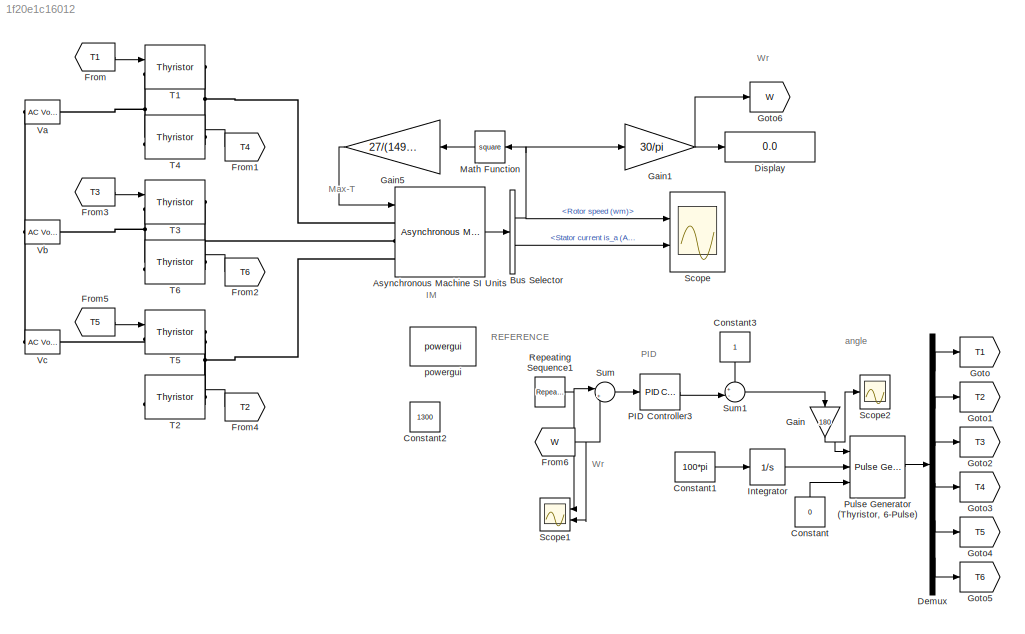
MODEL slx_1f20e1c16012
KIND model
CONFIG AbsTol = auto
CONFIG EnableMultiTasking = on
CONFIG FixedStep = auto
CONFIG MaxStep = 1e-4
CONFIG MinStep = auto
CONFIG RelTol = 1e-3
CONFIG SampleTimeConstraint = Unconstrained
CONFIG SolverName = ode23s
CONFIG StartTime = 0.0
CONFIG StopTime = 10
BLOCK [Reference]  Va  REF=spsACVoltageSourceLib/AC Voltage Source
  Ports = [0, 0, 0, 0, 0, 1, 1]
  SourceBlock = spsACVoltageSourceLib/AC Voltage Source
  SourceProductBaseCode = PS
  SourceType = AC Voltage Source
BLOCK [Reference] Asynchronous Machine SI Units  REF=spsAsynchronousMachineSIUnitsLib/Asynchronous Machine
SI Units
  Ports = [1, 1, 0, 0, 0, 3]
  SourceBlock = spsAsynchronousMachineSIUnitsLib/Asynchronous Machine\nSI Units
  SourceProductBaseCode = PS
  SourceType = Asynchronous Machine
BLOCK [BusSelector] Bus Selector
  OutputSignals = Mechanical.Rotor speed (wm),Stator measurements.Stator current is_a (A)
  Ports = [1, 2]
BLOCK [Constant] Constant
  NameLocation = right
  Value = 0
BLOCK [Constant] Constant1
  Value = 100*pi
BLOCK [Constant] Constant2
  Value = 1300
BLOCK [Constant] Constant3
  NameLocation = left
BLOCK [Demux] Demux
  Outputs = 6
  Ports = [1, 6]
BLOCK [Display] Display
  Decimation = 1
  Ports = [1]
BLOCK [From] From
  GotoTag = T1
BLOCK [From] From1
  GotoTag = T4
  NameLocation = top
BLOCK [From] From2
  GotoTag = T6
  NameLocation = top
BLOCK [From] From3
  GotoTag = T3
BLOCK [From] From4
  GotoTag = T2
  NameLocation = top
BLOCK [From] From5
  GotoTag = T5
BLOCK [From] From6
  GotoTag = W
  NameLocation = top
BLOCK [Gain] Gain
  Gain = 180
  NameLocation = left
BLOCK [Gain] Gain1
  Gain = 30/pi
BLOCK [Gain] Gain5
  Gain = 27/(149)^2
  NameLocation = top
BLOCK [Goto] Goto
  GotoTag = T1
BLOCK [Goto] Goto1
  GotoTag = T2
BLOCK [Goto] Goto2
  GotoTag = T3
BLOCK [Goto] Goto3
  GotoTag = T4
BLOCK [Goto] Goto4
  GotoTag = T5
BLOCK [Goto] Goto5
  GotoTag = T6
BLOCK [Goto] Goto6
  GotoTag = W
BLOCK [Integrator] Integrator
  Ports = [1, 1]
BLOCK [Math] Math Function
  NameLocation = top
  Operator = square
  Ports = [1, 1]
  SignedPower = on
BLOCK [Reference] PID Controller3  REF=slpidlib/PID Controller
  Ports = [1, 1]
  SourceBlock = slpidlib/PID Controller
  SourceProductBaseCode = SL
  SourceType = PID 1dof
BLOCK [Reference] Pulse Generator (Thyristor, 6-Pulse)  REF=spsPulseGeneratorThyristor12PulseLib/Pulse Generator
(Thyristor, 12-Pulse)
  Ports = [3, 1]
  SourceBlock = spsPulseGeneratorThyristor12PulseLib/Pulse Generator\n(Thyristor, 12-Pulse)
  SourceProductBaseCode = PS
  SourceType = Pulse Generator (Thyristor)
BLOCK [Reference] Repeating Sequence1  REF=simulink/Sources/Repeating
Sequence
  Ports = [0, 1]
  SourceBlock = simulink/Sources/Repeating\nSequence
  SourceProductBaseCode = SL
  SourceType = Repeating table
BLOCK [Scope] Scope
  Floating = off
  NumInputPorts = 2
  Ports = [2]
  ScopeSpecificationString = Simulink.scopes.TimeScopeBlockCfg('CurrentConfiguration', extmgr.ConfigurationSet(extmgr.Configuration('Core','General UI',true,'FigureColor',[1 1 1]),extmgr.Configuration('Core','Source UI',true),extmgr.Configuration('Sources','WiredSimulink',true),extmgr.Configuration('Visuals','Time Domain',true,'SerializedDisplays',{struct('MinYLimReal','-19.09785','MaxYLimReal','171.88062','YLabelReal','','Mi...<+2518ch>
BLOCK [Scope] Scope1
  Floating = off
  NameLocation = top
  NumInputPorts = 2
  Ports = [2]
  ScopeSpecificationString = Simulink.scopes.TimeScopeBlockCfg('CurrentConfiguration', extmgr.ConfigurationSet(extmgr.Configuration('Core','General UI',true,'FigureColor',[1 1 1]),extmgr.Configuration('Core','Source UI',true),extmgr.Configuration('Sources','WiredSimulink',true,'DataLoggingVariableName','ScopeData1'),extmgr.Configuration('Visuals','Time Domain',true,'SerializedDisplays',{struct('MinYLimReal','-182.37101','MaxY...<+2146ch>
BLOCK [Scope] Scope2
  Floating = off
  NumInputPorts = 1
  Ports = [1]
  ScopeSpecificationString = Simulink.scopes.TimeScopeBlockCfg('CurrentConfiguration', extmgr.ConfigurationSet(extmgr.Configuration('Core','General UI',true,'FigureColor',[1 1 1]),extmgr.Configuration('Core','Source UI',true),extmgr.Configuration('Sources','WiredSimulink',true,'DataLoggingVariableName','ScopeData2'),extmgr.Configuration('Visuals','Time Domain',true,'SerializedDisplays',{struct('MinYLimReal','-13.39697','MaxYL...<+2248ch>
BLOCK [Sum] Sum
  Inputs = |+-
  Ports = [2, 1]
BLOCK [Sum] Sum1
  Inputs = +-|
  Ports = [2, 1]
BLOCK [Reference] T1  REF=spsThyristorLib/Thyristor
  Ports = [1, 0, 0, 0, 0, 1, 1]
  SourceBlock = spsThyristorLib/Thyristor
  SourceProductBaseCode = PS
  SourceType = Thyristor
BLOCK [Reference] T2  REF=spsThyristorLib/Thyristor
  Ports = [1, 0, 0, 0, 0, 1, 1]
  SourceBlock = spsThyristorLib/Thyristor
  SourceProductBaseCode = PS
  SourceType = Thyristor
BLOCK [Reference] T3  REF=spsThyristorLib/Thyristor
  Ports = [1, 0, 0, 0, 0, 1, 1]
  SourceBlock = spsThyristorLib/Thyristor
  SourceProductBaseCode = PS
  SourceType = Thyristor
BLOCK [Reference] T4  REF=spsThyristorLib/Thyristor
  Ports = [1, 0, 0, 0, 0, 1, 1]
  SourceBlock = spsThyristorLib/Thyristor
  SourceProductBaseCode = PS
  SourceType = Thyristor
BLOCK [Reference] T5  REF=spsThyristorLib/Thyristor
  Ports = [1, 0, 0, 0, 0, 1, 1]
  SourceBlock = spsThyristorLib/Thyristor
  SourceProductBaseCode = PS
  SourceType = Thyristor
BLOCK [Reference] T6  REF=spsThyristorLib/Thyristor
  Ports = [1, 0, 0, 0, 0, 1, 1]
  SourceBlock = spsThyristorLib/Thyristor
  SourceProductBaseCode = PS
  SourceType = Thyristor
BLOCK [Reference] Vb  REF=spsACVoltageSourceLib/AC Voltage Source
  Ports = [0, 0, 0, 0, 0, 1, 1]
  SourceBlock = spsACVoltageSourceLib/AC Voltage Source
  SourceProductBaseCode = PS
  SourceType = AC Voltage Source
BLOCK [Reference] Vc  REF=spsACVoltageSourceLib/AC Voltage Source
  Ports = [0, 0, 0, 0, 0, 1, 1]
  SourceBlock = spsACVoltageSourceLib/AC Voltage Source
  SourceProductBaseCode = PS
  SourceType = AC Voltage Source
BLOCK [Reference] powergui  REF=spspowerguiLib/powergui
  Ports = []
  Priority = 1
  SourceBlock = spspowerguiLib/powergui
  SourceProductBaseCode = PS
  SourceType = PSB option menu block
ANNOTATION (root): PID
ANNOTATION (root): REFERENCE
ANNOTATION (root): Wr
ANNOTATION (root): Max-T
ANNOTATION (root): IM
ANNOTATION (root): angle
LINE Asynchronous Machine SI Units:1 -> Bus Selector:1
NET Bus Selector:1 -> Gain1:1, Math Function:1, Scope:1
LINE Bus Selector:2 -> Scope:2
LINE Constant1:1 -> Integrator:1
LINE Constant3:1 -> Sum1:1
LINE Constant:1 -> Pulse Generator (Thyristor, 6-Pulse):3
LINE Demux:1 -> Goto:1
LINE Demux:2 -> Goto1:1
LINE Demux:3 -> Goto2:1
LINE Demux:4 -> Goto3:1
LINE Demux:5 -> Goto4:1
LINE Demux:6 -> Goto5:1
LINE From1:1 -> T4:1
LINE From2:1 -> T6:1
LINE From3:1 -> T3:1
LINE From4:1 -> T2:1
LINE From5:1 -> T5:1
NET From6:1 -> Scope1:2, Sum:2
LINE From:1 -> T1:1
NET Gain1:1 -> Display:1, Goto6:1
LINE Gain5:1 -> Asynchronous Machine SI Units:1
NET Gain:1 -> Pulse Generator (Thyristor, 6-Pulse):1, Scope2:1
LINE Integrator:1 -> Pulse Generator (Thyristor, 6-Pulse):2
LINE Math Function:1 -> Gain5:1
LINE PID Controller3:1 -> Sum1:2
LINE Pulse Generator (Thyristor, 6-Pulse):1 -> Demux:1
NET Repeating Sequence1:1 -> Scope1:1, Sum:1
LINE Sum1:1 -> Gain:1
LINE Sum:1 -> PID Controller3:1
PNET net1:  Va:LConn1 -- Vb:LConn1 -- Vc:LConn1
PNET net2:  Va:RConn1 -- T1:LConn1 -- T4:RConn1
PNET net3: Asynchronous Machine SI Units:LConn1 -- T1:RConn1 -- T4:LConn1
PNET net4: Asynchronous Machine SI Units:LConn2 -- T3:RConn1 -- T6:LConn1
PNET net5: Asynchronous Machine SI Units:LConn3 -- T2:LConn1 -- T5:RConn1
PNET net6: T2:RConn1 -- T5:LConn1 -- Vc:RConn1
PNET net7: T3:LConn1 -- T6:RConn1 -- Vb:RConn1
note: NET lines group one-source signal fan-out (src -> all destinations, sorted); 1:1 wires keep LINE; PNET lines group multi-terminal physical nets as a canonical sorted terminal list (undirected conserving connections); 2-terminal nets keep the pairwise PLINE form
